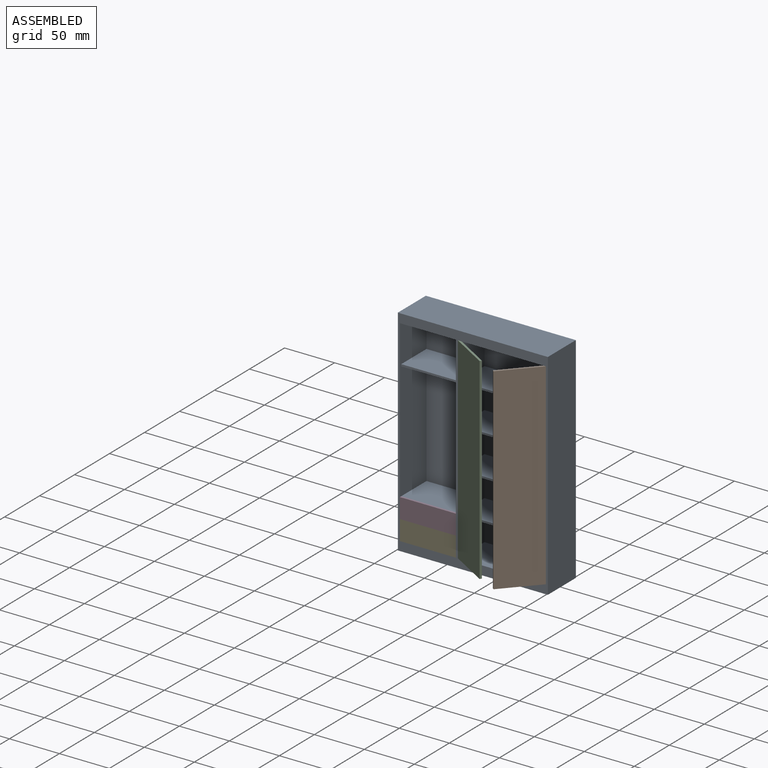
[diagram: assembled view]
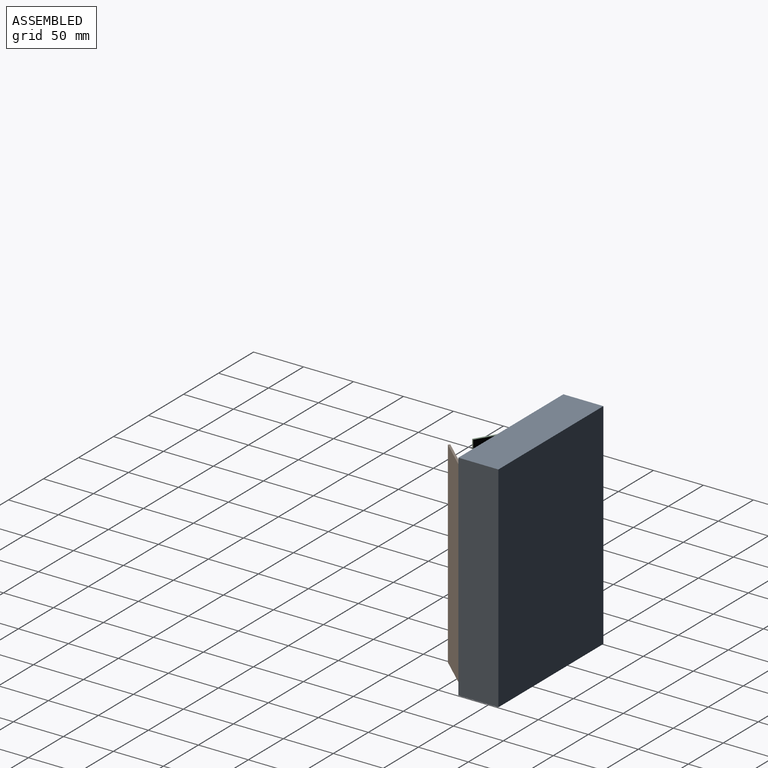
[diagram: assembled view, second angle]
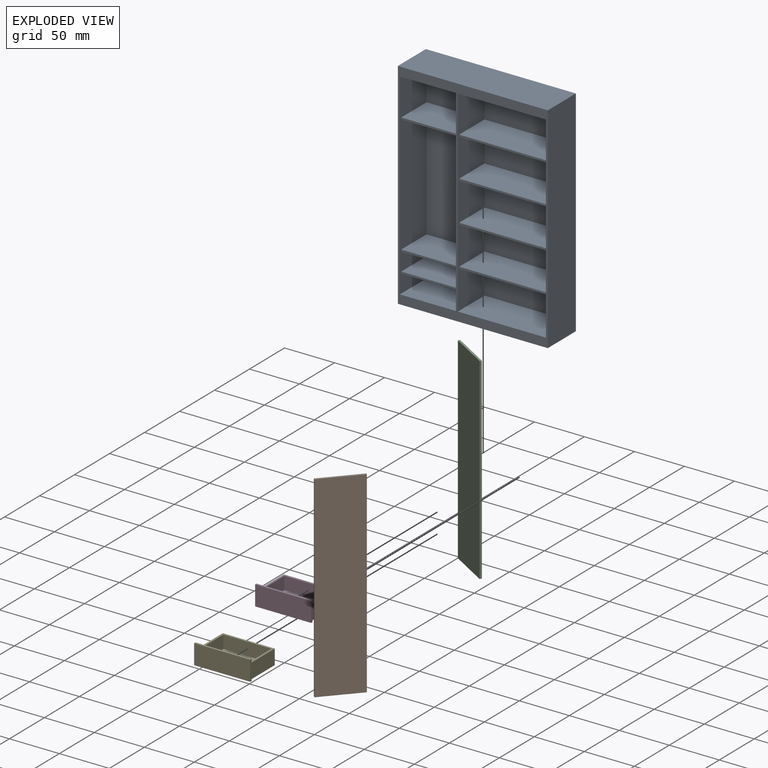
[diagram: exploded view]
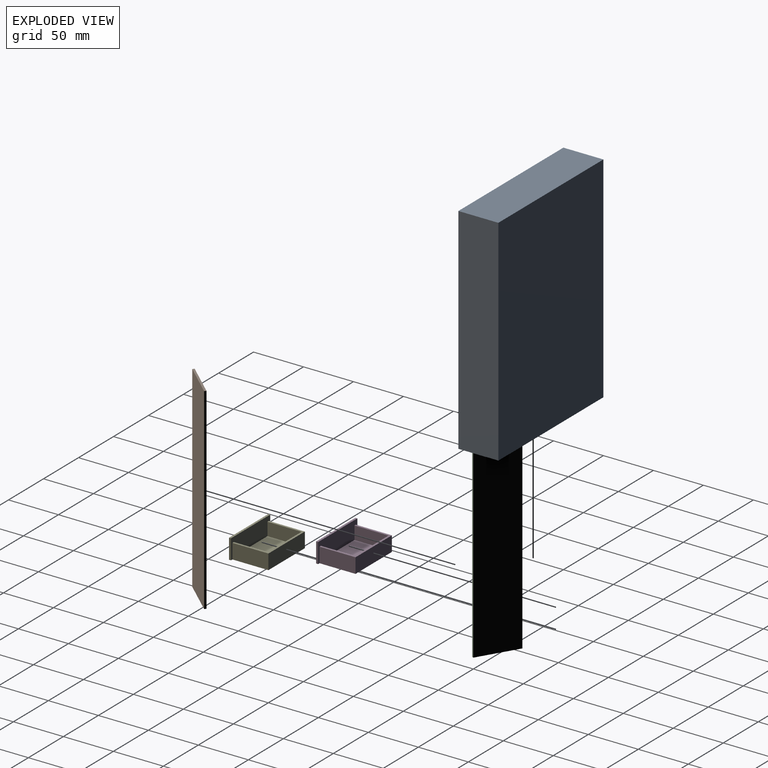
[diagram: exploded view, second angle]
ASSEMBLY  parts=5 mates=4
PART A: 44 faces, bbox 150x40x215 mm
  f0: plane 215x150mm, normal (0,-1,0), area 3882mm2, adj f11,f12,f13,f14,f16,f22,f26,f27
  f1: plane 56x36mm, normal (0,0,-1), area 2016mm2, adj f19,f26,f28,f41
  f2: plane 56x36mm, normal (0,0,1), area 2016mm2, adj f19,f26,f28,f43
  f3: plane 56x36mm, normal (0,0,-1), area 2016mm2, adj f20,f26,f28,f42
  f4: plane 56x36mm, normal (0,0,1), area 2016mm2, adj f20,f26,f28,f41
  f5: plane 88x36mm, normal (0,0,-1), area 3168mm2, adj f24,f34,f35,f37
  f6: plane 88x36mm, normal (0,0,1), area 3168mm2, adj f24,f34,f35,f40
  f7: plane 88x36mm, normal (0,0,-1), area 3168mm2, adj f33,f34,f35,f39
  f8: plane 88x36mm, normal (0,0,1), area 3168mm2, adj f33,f34,f35,f38
  f9: plane 88x36mm, normal (0,0,-1), area 3168mm2, adj f34,f35,f36,f38
  f10: plane 88x36mm, normal (0,0,1), area 3168mm2, adj f34,f35,f36,f37
  f11: plane 215x40mm, normal (-1,0,0), area 8600mm2, adj f0,f12,f14,f15
  f12: plane 150x40mm, normal (0,0,-1), area 6000mm2, adj f0,f11,f13,f15
  f13: plane 215x40mm, normal (1,0,0), area 8600mm2, adj f0,f12,f14,f15
  f14: plane 150x40mm, normal (0,0,1), area 6000mm2, adj f0,f11,f13,f15
  f15: plane 215x150mm, normal (0,1,0), area 32250mm2, adj f11,f12,f13,f14
  f16: plane 56x38mm, normal (0,0,-1), area 2128mm2, adj f0,f18,f26,f28
  f17: plane 56x36mm, normal (0,0,1), area 2016mm2, adj f18,f26,f28,f42
  f18: plane 56x37.8mm, normal (0,-1,0), area 2116.8mm2, adj f16,f17,f26,f28
  f19: plane 56x17.9mm, normal (0,-1,0), area 1002.4mm2, adj f1,f2,f26,f28
  f20: plane 117.4x56mm, normal (0,-1,0), area 6574.4mm2, adj f3,f4,f26,f28
  f21: plane 88x36mm, normal (0,0,-1), area 3168mm2, adj f23,f34,f35,f40
  f22: plane 88x38mm, normal (0,0,1), area 3344mm2, adj f0,f23,f34,f35
  f23: plane 88x37.8mm, normal (0,-1,0), area 3326.4mm2, adj f21,f22,f34,f35
  f24: plane 88x37.8mm, normal (0,-1,0), area 3326.4mm2, adj f5,f6,f34,f35
  f25: plane 56x36mm, normal (0,0,-1), area 2016mm2, adj f26,f28,f29,f43
  f26: plane 197x38mm, normal (1,0,0), area 7270mm2, adj f0,f1,f2,f3,f4,f16,f17,f18
  f27: plane 56x38mm, normal (0,0,1), area 2128mm2, adj f0,f26,f28,f29
  f28: plane 197x38mm, normal (-1,0,0), area 7270mm2, adj f0,f1,f2,f3,f4,f16,f17,f18
  f29: plane 56x17.9mm, normal (0,-1,0), area 1002.4mm2, adj f25,f26,f27,f28
  f30: plane 88x38mm, normal (0,0,-1), area 3344mm2, adj f0,f32,f34,f35
  f31: plane 88x36mm, normal (0,0,1), area 3168mm2, adj f32,f34,f35,f39
  f32: plane 88x37.8mm, normal (0,-1,0), area 3326.4mm2, adj f30,f31,f34,f35
  f33: plane 88x37.8mm, normal (0,-1,0), area 3326.4mm2, adj f7,f8,f34,f35
  f34: plane 197x38mm, normal (1,0,0), area 7198mm2, adj f0,f5,f6,f7,f8,f9,f10,f21
  f35: plane 197x38mm, normal (-1,0,0), area 7198mm2, adj f0,f5,f6,f7,f8,f9,f10,f21
  f36: plane 88x37.8mm, normal (0,-1,0), area 3326.4mm2, adj f9,f10,f34,f35
  f37: plane 88x2mm, normal (0,-1,0), area 176mm2, adj f5,f10,f34,f35
  f38: plane 88x2mm, normal (0,-1,0), area 176mm2, adj f8,f9,f34,f35
  f39: plane 88x2mm, normal (0,-1,0), area 176mm2, adj f7,f31,f34,f35
  f40: plane 88x2mm, normal (0,-1,0), area 176mm2, adj f6,f21,f34,f35
  f41: plane 56x2mm, normal (0,-1,0), area 112mm2, adj f1,f4,f26,f28
  f42: plane 56x2mm, normal (0,-1,0), area 112mm2, adj f3,f17,f26,f28
  f43: plane 56x2mm, normal (0,-1,0), area 112mm2, adj f2,f25,f26,f28
PART B: 6 faces, bbox 44x2x197 mm
  f0: plane 197x2mm, normal (1,0,0), area 394mm2, adj f1,f3,f4,f5
  f1: plane 44x2mm, normal (0,0,1), area 88mm2, adj f0,f2,f4,f5
  f2: plane 197x2mm, normal (-1,0,0), area 394mm2, adj f1,f3,f4,f5
  f3: plane 44x2mm, normal (0,0,-1), area 88mm2, adj f0,f2,f4,f5
  f4: plane 197x44mm, normal (0,-1,0), area 8668mm2, adj f0,f1,f2,f3
  f5: plane 197x44mm, normal (0,1,0), area 8668mm2, adj f0,f1,f2,f3
PART C: same geometry as B
PART D: 14 faces, bbox 56x38x19.9 mm
  f0: plane 19.9x2mm, normal (-1,0,0), area 39.8mm2, adj f4,f5,f6,f7
  f1: plane 52x15mm, normal (0,1,0), area 780mm2, adj f3,f5,f12,f13
  f2: plane 19.9x2mm, normal (1,0,0), area 39.8mm2, adj f4,f5,f6,f7
  f3: plane 52x36mm, normal (0,0,1), area 240mm2, adj f1,f7,f8,f9,f10,f12,f13
  f4: plane 56x2mm, normal (0,0,1), area 112mm2, adj f0,f2,f6,f7
  f5: plane 56x38mm, normal (0,0,-1), area 1984mm2, adj f0,f1,f2,f6,f7,f12,f13
  f6: plane 56x19.9mm, normal (0,-1,0), area 1114.4mm2, adj f0,f2,f4,f5
  f7: plane 56x19.9mm, normal (0,1,0), area 958.4mm2, adj f0,f2,f3,f4,f5,f9,f10,f11
  f8: plane 48x13mm, normal (0,-1,0), area 624mm2, adj f3,f9,f10,f11
  f9: plane 34x13mm, normal (1,0,0), area 442mm2, adj f3,f7,f8,f11
  f10: plane 34x13mm, normal (-1,0,0), area 442mm2, adj f3,f7,f8,f11
  f11: plane 48x34mm, normal (0,0,1), area 1632mm2, adj f7,f8,f9,f10
  f12: plane 36x15mm, normal (-1,0,0), area 540mm2, adj f1,f3,f5,f7
  f13: plane 36x15mm, normal (1,0,0), area 540mm2, adj f1,f3,f5,f7
PART E: same geometry as D
PLACE A t=(-283.67,14.5,5.93)mm fixed
PLACE B rot(axis=(0,0,1),47.7deg) t=(-328.88,36.09,5.93)mm
PLACE C rot(axis=(0,0,-1),31.1deg) t=(-211.38,94.39,5.93)mm
PLACE D t=(-283.67,114.5,25.83)mm
PLACE E t=(-283.67,114.5,5.93)mm
MATE revolute B.f1 <-> A.f30  axis (0,0,1) through (-195.67,-25.5,211.93)mm
MATE slider D.f6 <-> A.f41  axis (0,-1,0) through (-285.67,-25.5,54.73)mm
MATE revolute C.f3 <-> A.f22  axis (0,0,-1) through (-283.67,-25.5,14.93)mm
MATE slider E.f6 <-> A.f0  axis (0,-1,0) through (-285.67,-25.5,14.93)mm
